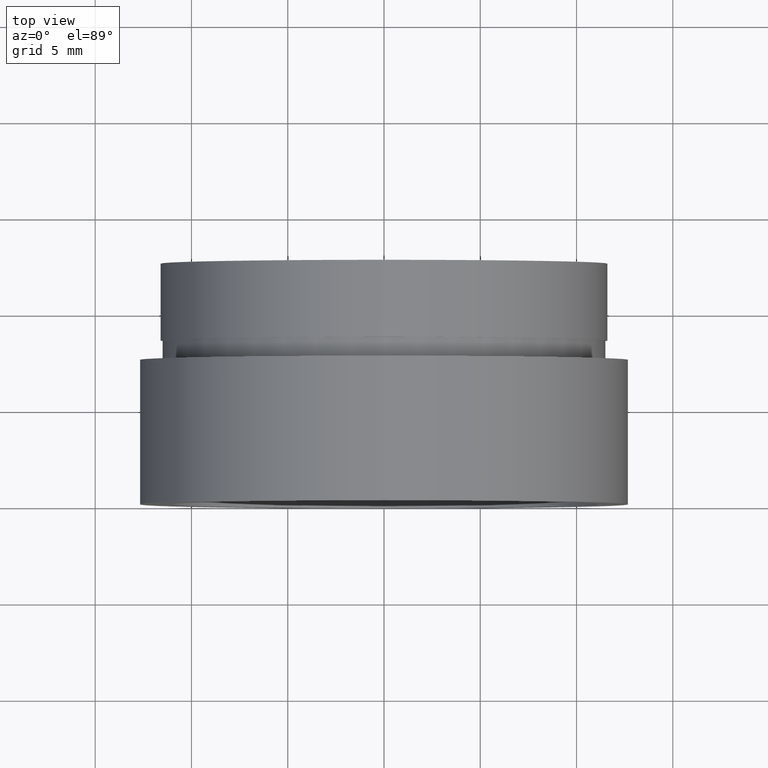
[diagram: clean part render]
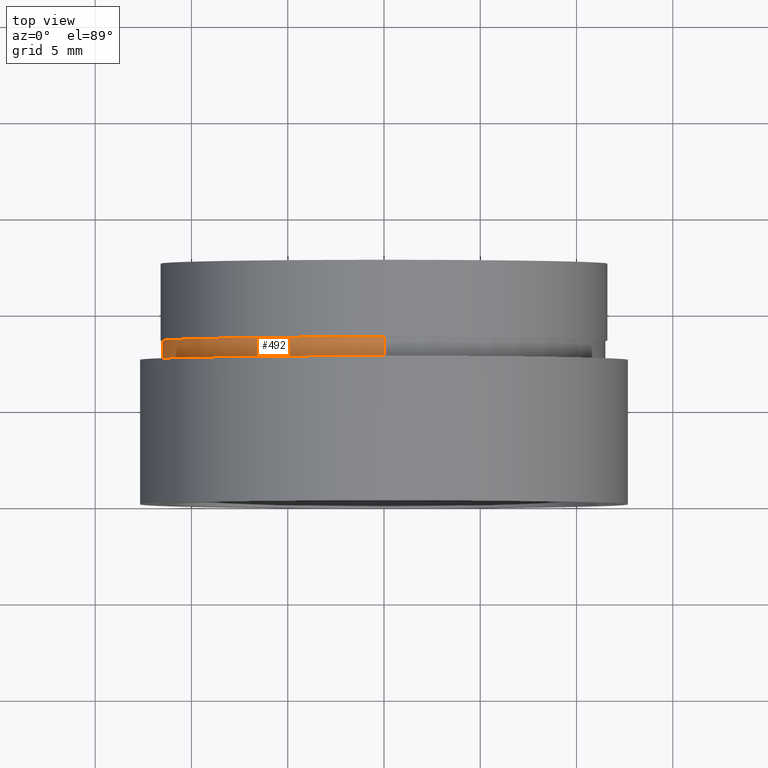
[diagram: same view with one face highlighted and labeled with its STEP entity id]
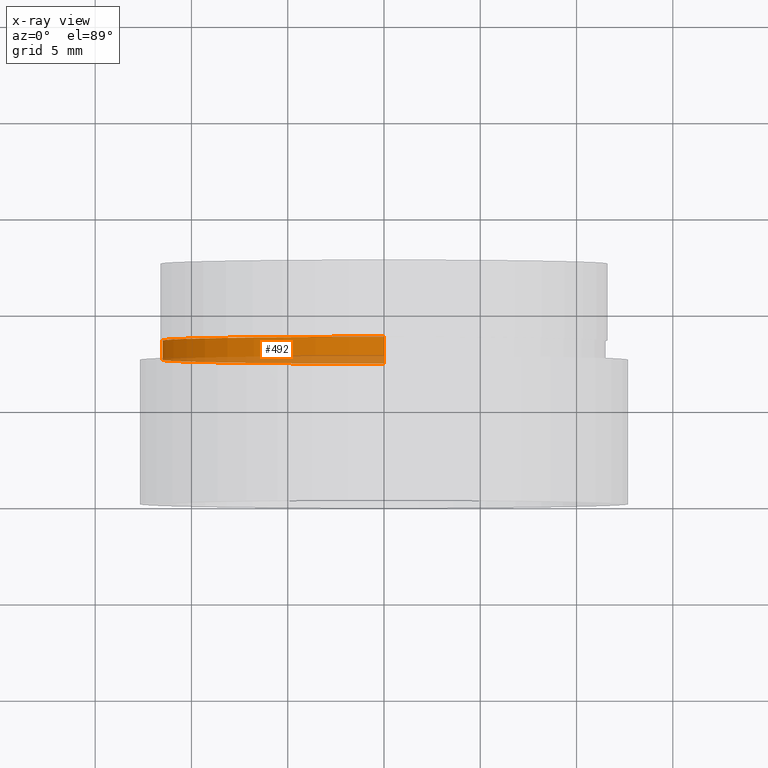
[diagram: x-ray of the same camera — body ghosted, the highlighted face saturated]
A machine part, top view. The second image highlights one B-rep face of the part: STEP entity #492.
The next image is the same camera in x-ray: the body ghosted, the highlighted face saturated — about 24% of this face is hidden behind the body in this view.
In plain terms, the highlighted cylindrical surface (partial cylindrical patch) has radius 11.5 mm, axis along (-0, 1, -0).
Its self-contained STEP definition (entity closure, byte-faithful):
#27 = CYLINDRICAL_SURFACE ( 'NONE', #613, 11.50000000000001800 ) ;
#28 = ORIENTED_EDGE ( 'NONE', *, *, #402, .T. ) ;
#38 = ORIENTED_EDGE ( 'NONE', *, *, #207, .F. ) ;
#48 = VERTEX_POINT ( 'NONE', #610 ) ;
#49 = CARTESIAN_POINT ( 'NONE',  ( 0.0000000000000000000, 8.499999999999980500, 0.0000000000000000000 ) ) ;
#88 = ORIENTED_EDGE ( 'NONE', *, *, #485, .T. ) ;
#100 = DIRECTION ( 'NONE',  ( -0.0000000000000000000, 1.000000000000000000, -0.0000000000000000000 ) ) ;
#109 = DIRECTION ( 'NONE',  ( -0.0000000000000000000, 1.000000000000000000, -0.0000000000000000000 ) ) ;
#142 = CARTESIAN_POINT ( 'NONE',  ( 0.0000000000000000000, 7.499999999999978700, 0.0000000000000000000 ) ) ;
#150 = CARTESIAN_POINT ( 'NONE',  ( 0.0000000000000000000, 161.3761669434274500, 0.0000000000000000000 ) ) ;
#192 = ORIENTED_EDGE ( 'NONE', *, *, #353, .F. ) ;
#194 = FACE_OUTER_BOUND ( 'NONE', #514, .T. ) ;
#207 = EDGE_CURVE ( 'NONE', #210, #48, #539, .T. ) ;
#210 = VERTEX_POINT ( 'NONE', #242 ) ;
#237 = CARTESIAN_POINT ( 'NONE',  ( 0.0000000000000000000, 8.499999999999980500, 11.50000000000001800 ) ) ;
#242 = CARTESIAN_POINT ( 'NONE',  ( 1.408343819019458300E-015, 7.499999999999978700, -11.50000000000001800 ) ) ;
#290 = AXIS2_PLACEMENT_3D ( 'NONE', #142, #535, #490 ) ;
#300 = CARTESIAN_POINT ( 'NONE',  ( 0.0000000000000000000, 7.499999999999978700, 11.50000000000001800 ) ) ;
#324 = CARTESIAN_POINT ( 'NONE',  ( 1.408343819019458300E-015, 161.3761669434274500, -11.50000000000001800 ) ) ;
#333 = VECTOR ( 'NONE', #602, 1000.000000000000000 ) ;
#343 = VERTEX_POINT ( 'NONE', #237 ) ;
#350 = LINE ( 'NONE', #408, #333 ) ;
#353 = EDGE_CURVE ( 'NONE', #48, #343, #447, .T. ) ;
#368 = VECTOR ( 'NONE', #518, 1000.000000000000000 ) ;
#389 = DIRECTION ( 'NONE',  ( 0.0000000000000000000, 0.0000000000000000000, 1.000000000000000000 ) ) ;
#402 = EDGE_CURVE ( 'NONE', #210, #422, #601, .T. ) ;
#408 = CARTESIAN_POINT ( 'NONE',  ( 0.0000000000000000000, 161.3761669434274500, 11.50000000000001800 ) ) ;
#422 = VERTEX_POINT ( 'NONE', #300 ) ;
#447 = CIRCLE ( 'NONE', #609, 11.50000000000001800 ) ;
#485 = EDGE_CURVE ( 'NONE', #422, #343, #350, .T. ) ;
#490 = DIRECTION ( 'NONE',  ( 0.0000000000000000000, 0.0000000000000000000, 1.000000000000000000 ) ) ;
#492 = ADVANCED_FACE ( 'NONE', ( #194 ), #27, .T. ) ;
#514 = EDGE_LOOP ( 'NONE', ( #38, #28, #88, #192 ) ) ;
#518 = DIRECTION ( 'NONE',  ( -0.0000000000000000000, 1.000000000000000000, -0.0000000000000000000 ) ) ;
#535 = DIRECTION ( 'NONE',  ( -0.0000000000000000000, 1.000000000000000000, -0.0000000000000000000 ) ) ;
#539 = LINE ( 'NONE', #324, #368 ) ;
#594 = DIRECTION ( 'NONE',  ( 0.0000000000000000000, 0.0000000000000000000, 1.000000000000000000 ) ) ;
#601 = CIRCLE ( 'NONE', #290, 11.50000000000001800 ) ;
#602 = DIRECTION ( 'NONE',  ( -0.0000000000000000000, 1.000000000000000000, -0.0000000000000000000 ) ) ;
#609 = AXIS2_PLACEMENT_3D ( 'NONE', #49, #100, #389 ) ;
#610 = CARTESIAN_POINT ( 'NONE',  ( 1.408343819019458300E-015, 8.499999999999980500, -11.50000000000001800 ) ) ;
#613 = AXIS2_PLACEMENT_3D ( 'NONE', #150, #109, #594 ) ;